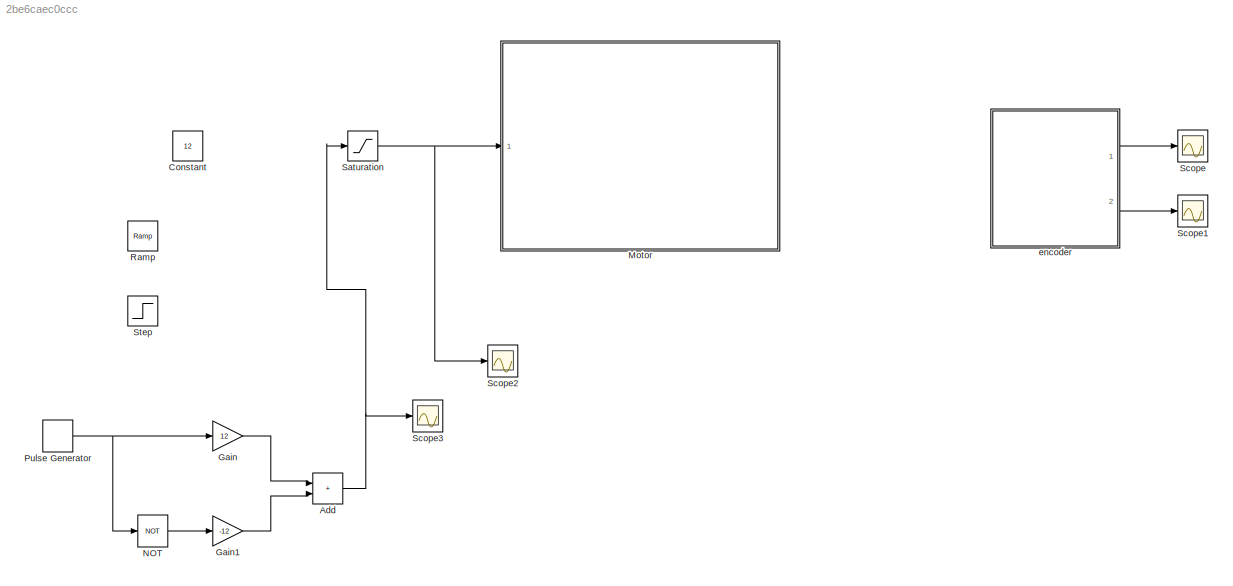
MODEL slx_2be6caec0ccc
KIND model
CONFIG AbsTol = auto
CONFIG EnableMultiTasking = on
CONFIG FixedStep = 0.005
CONFIG MaxStep = auto
CONFIG MinStep = auto
CONFIG RelTol = 1e-3
CONFIG SampleTimeConstraint = Unconstrained
CONFIG SolverName = FixedStepAuto
CONFIG StartTime = 0.0
CONFIG StopTime = inf
BLOCK [Sum] Add
  IconShape = rectangular
  Ports = [2, 1]
BLOCK [Constant] Constant
  Value = 12
BLOCK [Gain] Gain
  Gain = 12
BLOCK [Gain] Gain1
  Gain = -12
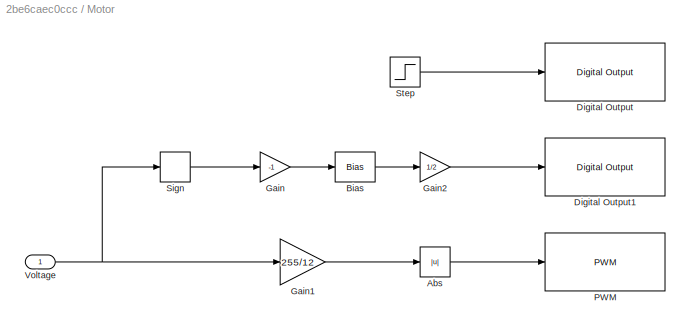
BLOCK [SubSystem] Motor
  Ports = [1]
  RequestExecContextInheritance = off
BLOCK [Abs] Motor/Abs
  SaturateOnIntegerOverflow = off
BLOCK [Bias] Motor/Bias
  Bias = 1
  SaturateOnIntegerOverflow = off
BLOCK [Reference] Motor/Digital Output  REF=arduinolib/Digital Output
  Ports = [1]
  SourceBlock = arduinolib/Digital Output
  SourceProductBaseCode = ARDUINO
  SourceType = Arduino Digital Output
BLOCK [Reference] Motor/Digital Output1  REF=arduinolib/Digital Output
  Ports = [1]
  SourceBlock = arduinolib/Digital Output
  SourceProductBaseCode = ARDUINO
  SourceType = Arduino Digital Output
BLOCK [Gain] Motor/Gain
  Gain = -1
BLOCK [Gain] Motor/Gain1
  Gain = 255/12
BLOCK [Gain] Motor/Gain2
  Gain = 1/2
BLOCK [Reference] Motor/PWM  REF=arduinolib/PWM
  Ports = [1]
  SourceBlock = arduinolib/PWM
  SourceProductBaseCode = ARDUINO
  SourceType = Arduino PWM
BLOCK [Signum] Motor/Sign
BLOCK [Step] Motor/Step
  After = 0
  Before = 1
  SampleTime = 0
  Time = 5
BLOCK [Inport] Motor/Voltage
BLOCK [Logic] NOT
  AllPortsSameDT = off
  IconShape = distinctive
  Operator = NOT
  OutDataTypeStr = boolean
  Ports = [1, 1]
BLOCK [DiscretePulseGenerator] Pulse Generator
  Ports = [0, 1]
  PulseType = Time based
  PulseWidth = 50
BLOCK [Reference] Ramp  REF=simulink/Sources/Ramp
  Ports = [0, 1]
  SourceBlock = simulink/Sources/Ramp
  SourceProductBaseCode = SL
  SourceType = Ramp
BLOCK [Saturate] Saturation
  LowerLimit = -12
  UpperLimit = 12
BLOCK [Scope] Scope
  Floating = off
  NumInputPorts = 1
  Ports = [1]
  ScopeSpecificationString = Simulink.scopes.TimeScopeBlockCfg('CurrentConfiguration', extmgr.ConfigurationSet(extmgr.Configuration('Core','General UI',true),extmgr.Configuration('Core','Source UI',true),extmgr.Configuration('Sources','WiredSimulink',true),extmgr.Configuration('Visuals','Time Domain',true,'SerializedDisplays',{struct('MinYLimReal','-691.96289','MaxYLimReal','6231.18164','YLabelReal','','MinYLimMag',' 0.00000'...<+1419ch>
BLOCK [Scope] Scope1
  Floating = off
  NumInputPorts = 1
  Ports = [1]
  ScopeSpecificationString = Simulink.scopes.TimeScopeBlockCfg('CurrentConfiguration', extmgr.ConfigurationSet(extmgr.Configuration('Core','General UI',true),extmgr.Configuration('Core','Source UI',true),extmgr.Configuration('Sources','WiredSimulink',true,'DataLoggingVariableName','ScopeData1'),extmgr.Configuration('Visuals','Time Domain',true,'SerializedDisplays',{struct('MinYLimReal','-7031.25','MaxYLimReal','6312.39149','Y...<+1855ch>
BLOCK [Scope] Scope2
  Floating = off
  NumInputPorts = 1
  Ports = [1]
  ScopeSpecificationString = Simulink.scopes.TimeScopeBlockCfg('CurrentConfiguration', extmgr.ConfigurationSet(extmgr.Configuration('Core','General UI',true),extmgr.Configuration('Core','Source UI',true),extmgr.Configuration('Sources','WiredSimulink',true,'DataLoggingVariableName','ScopeData2'),extmgr.Configuration('Visuals','Time Domain',true,'SerializedDisplays',{struct('MinYLimReal','-15.00000','MaxYLimReal','15.00000','YL...<+1482ch>
BLOCK [Scope] Scope3
  Floating = off
  NumInputPorts = 1
  Ports = [1]
  ScopeSpecificationString = Simulink.scopes.TimeScopeBlockCfg('CurrentConfiguration', extmgr.ConfigurationSet(extmgr.Configuration('Core','General UI',true),extmgr.Configuration('Core','Source UI',true),extmgr.Configuration('Sources','WiredSimulink',true,'DataLoggingVariableName','ScopeData1'),extmgr.Configuration('Visuals','Time Domain',true,'SerializedDisplays',{struct('MinYLimReal','-1.375','MaxYLimReal','2.375','YLabelRe...<+1502ch>
BLOCK [Step] Step
  After = 12
  Before = 6
  SampleTime = 0
  Time = 10
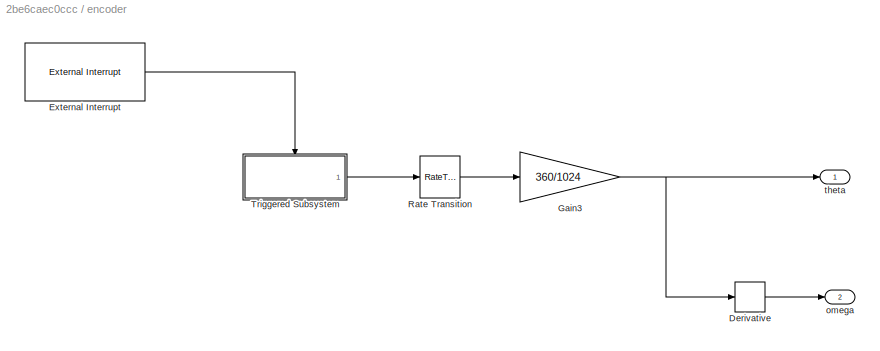
BLOCK [SubSystem] encoder
  Ports = [0, 2]
  RequestExecContextInheritance = off
BLOCK [Derivative] encoder/Derivative
BLOCK [Reference] encoder/External Interrupt  REF=arduinolib/External Interrupt
  Ports = [0, 1]
  SourceBlock = arduinolib/External Interrupt
  SourceProductBaseCode = ARDUINO
  SourceType = Arduino Interrupt Block
BLOCK [Gain] encoder/Gain3
  Gain = 360/1024
BLOCK [RateTransition] encoder/Rate Transition
  Deterministic = off
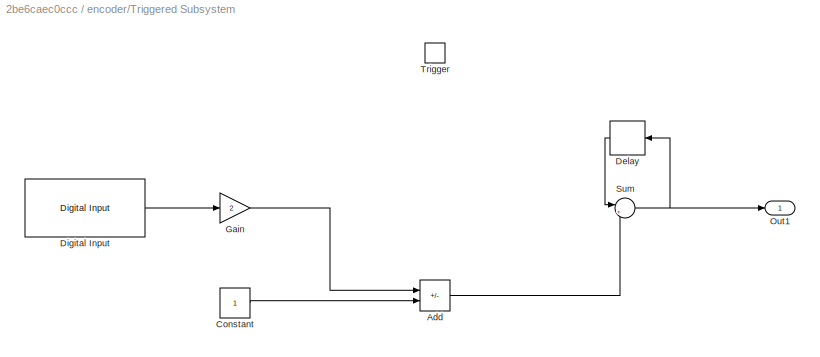
BLOCK [SubSystem] encoder/Triggered Subsystem
  Ports = [0, 1, 0, 1]
  RequestExecContextInheritance = off
  TreatAsAtomicUnit = on
BLOCK [Sum] encoder/Triggered Subsystem/Add
  IconShape = rectangular
  Inputs = +-
  Ports = [2, 1]
BLOCK [Constant] encoder/Triggered Subsystem/Constant
BLOCK [Delay] encoder/Triggered Subsystem/Delay
  DelayLength = 1
  InputPortMap = u0
  NameLocation = top
  Ports = [1, 1]
BLOCK [Reference] encoder/Triggered Subsystem/Digital Input  REF=arduinolib/Digital Input
  Ports = [0, 1]
  SourceBlock = arduinolib/Digital Input
  SourceProductBaseCode = ARDUINO
  SourceType = Arduino Digital Input
BLOCK [Gain] encoder/Triggered Subsystem/Gain
  Gain = 2
BLOCK [Outport] encoder/Triggered Subsystem/Out1
BLOCK [Sum] encoder/Triggered Subsystem/Sum
  Inputs = |++
  Ports = [2, 1]
BLOCK [TriggerPort] encoder/Triggered Subsystem/Trigger
  Ports = []
  StatesWhenEnabling = held
  TriggerType = function-call
  VariantControl = (inherit)
BLOCK [Outport] encoder/omega
  Port = 2
BLOCK [Outport] encoder/theta
NET Add:1 -> Saturation:1, Scope3:1
LINE Gain1:1 -> Add:2
LINE Gain:1 -> Add:1
LINE Motor/Abs:1 -> Motor/PWM:1
LINE Motor/Bias:1 -> Motor/Gain2:1
LINE Motor/Gain1:1 -> Motor/Abs:1
LINE Motor/Gain2:1 -> Motor/Digital Output1:1
LINE Motor/Gain:1 -> Motor/Bias:1
LINE Motor/Sign:1 -> Motor/Gain:1
LINE Motor/Step:1 -> Motor/Digital Output:1
NET Motor/Voltage:1 -> Motor/Gain1:1, Motor/Sign:1
LINE NOT:1 -> Gain1:1
NET Pulse Generator:1 -> Gain:1, NOT:1
NET Saturation:1 -> Motor:1, Scope2:1
LINE encoder/Derivative:1 -> encoder/omega:1
LINE encoder/External Interrupt:1 -> encoder/Triggered Subsystem:trigger
NET encoder/Gain3:1 -> encoder/Derivative:1, encoder/theta:1
LINE encoder/Rate Transition:1 -> encoder/Gain3:1
LINE encoder/Triggered Subsystem/Add:1 -> encoder/Triggered Subsystem/Sum:2
LINE encoder/Triggered Subsystem/Constant:1 -> encoder/Triggered Subsystem/Add:2
LINE encoder/Triggered Subsystem/Delay:1 -> encoder/Triggered Subsystem/Sum:1
LINE encoder/Triggered Subsystem/Digital Input:1 -> encoder/Triggered Subsystem/Gain:1
LINE encoder/Triggered Subsystem/Gain:1 -> encoder/Triggered Subsystem/Add:1
NET encoder/Triggered Subsystem/Sum:1 -> encoder/Triggered Subsystem/Delay:1, encoder/Triggered Subsystem/Out1:1
LINE encoder/Triggered Subsystem:1 -> encoder/Rate Transition:1
LINE encoder:1 -> Scope:1
LINE encoder:2 -> Scope1:1
note: NET lines group one-source signal fan-out (src -> all destinations, sorted); 1:1 wires keep LINE
